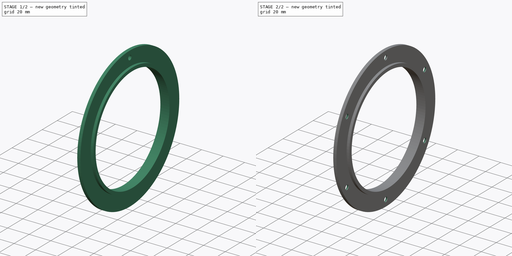
[diagram: build sequence overview — one tinted view per stage of 2, left to right]
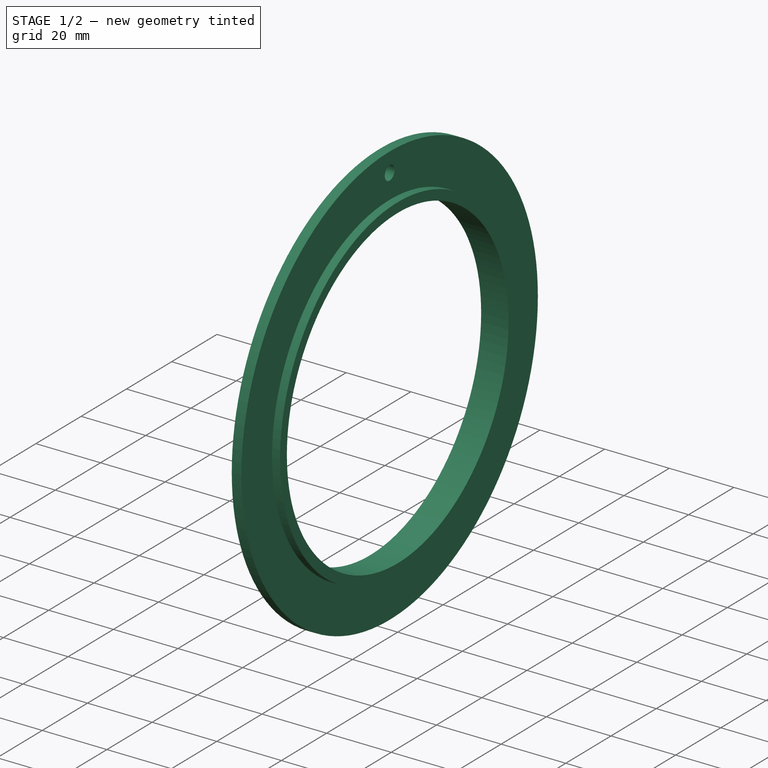
[diagram: stage 1 of 2 — iso view after this stage's code; geometry added in this stage tinted green]
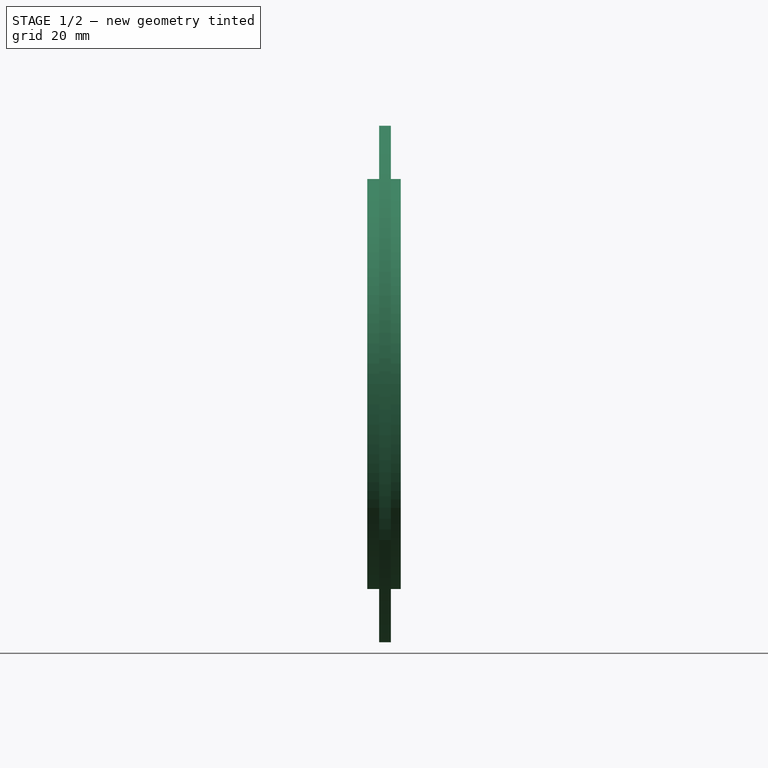
[diagram: stage 1 of 2 — front view after this stage's code; geometry added in this stage tinted green]
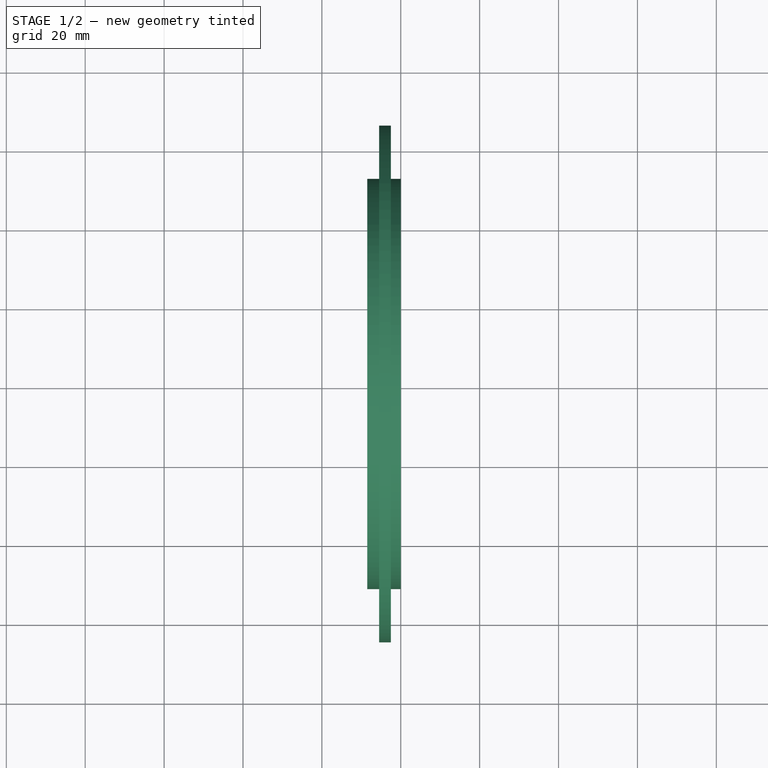
[diagram: stage 1 of 2 — top view after this stage's code; geometry added in this stage tinted green]
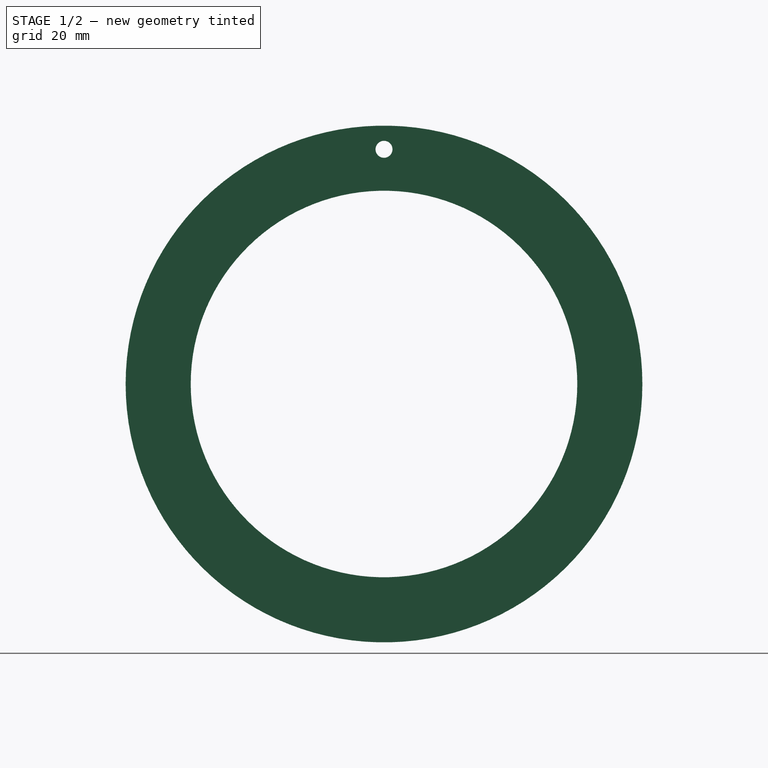
[diagram: stage 1 of 2 — right view after this stage's code; geometry added in this stage tinted green]
FCSTD DOCUMENT  (FreeCAD 0.16R)
Label: Durstflange
License: All rights reserved
LicenseURL: http://en.wikipedia.org/wiki/All_rights_reserved
objects: Sketcher::SketchObject×2, PartDesign::Revolution×1, PartDesign::Pocket×1, PartDesign::PolarPattern×1, PartDesign::Chamfer×1
note: 8 computed .brp shape members not serialized (recipe doc carries the construction recipe); baked Part::Feature solids carry a one-line shape summary decoded from their .brp

FEATURE [Sketcher::SketchObject] Sketch
  sketch-geometry (8):
    g0: LineSegment StartX=-8.5 StartY=52 StartZ=0 EndX=-5.5 EndY=52 EndZ=0
    g1: LineSegment StartX=-5.5 StartY=52 StartZ=0 EndX=-5.5 EndY=65.5 EndZ=0
    g2: LineSegment StartX=-5.5 StartY=65.5 StartZ=0 EndX=-2.5 EndY=65.5 EndZ=0
    g3: LineSegment StartX=-2.5 StartY=65.5 StartZ=0 EndX=-2.5 EndY=52 EndZ=0
    g4: LineSegment StartX=-2.5 StartY=52 StartZ=0 EndX=0 EndY=52 EndZ=0
    g5: LineSegment StartX=0 StartY=52 StartZ=0 EndX=0 EndY=49 EndZ=0
    g6: LineSegment StartX=0 StartY=49 StartZ=0 EndX=-8.5 EndY=49 EndZ=0
    g7: LineSegment StartX=-8.5 StartY=49 StartZ=0 EndX=-8.5 EndY=52 EndZ=0
  constraints (24):
    c: Horizontal(g0)
    c: Coincident(g0,g1)
    c: Vertical(g1)
    c: Coincident(g1,g2)
    c: Coincident(g2,g3)
    c: Coincident(g3,g4)
    c: Coincident(g4,g5)
    c: Coincident(g5,g6)
    c: Coincident(g6,g7)
    c: Coincident(g7,g0)
    c: Vertical(g7)
    c: Vertical(g5)
    c: Horizontal(g4)
    c: Vertical(g3)
    c: Horizontal(g6)
    c: Equal(g7,g5)
    c: Equal(g3,g1)
    c: Distance(g2) = 3
    c: Distance(g0) = 3
    c: Distance(g4) = 2.5
    c: DistanceY(g5) = 49
    c: DistanceY(g4) = 52
    c: DistanceY(g2) = 65.5
    c: PointOnObject(g5,g-2)
FEATURE [PartDesign::Revolution] Revolution
  Angle = 360
  Axis = (1,0,0)
  Base = (0,0,0)
  ReferenceAxis = -> Sketch [H_Axis]
  Sketch = -> Sketch
FEATURE [Sketcher::SketchObject] Sketch001
  Placement = pos=(-5.5,0,0) rot=(0.57735,-0.57735,-0.57735;2.0944rad)
  Support = -> Revolution [Face2]
  sketch-geometry (1):
    g0: Circle CenterX=0 CenterY=59.5 CenterZ=0 NormalX=0 NormalY=0 NormalZ=1 Radius=2.15
  constraints (3):
    c: Radius(g0) = 2.15
    c: PointOnObject(g0,g-2)
    c: DistanceY(g0) = 59.5
FEATURE [PartDesign::Pocket] Pocket
  Length = 5
  Sketch = -> Sketch001
  Type = 0
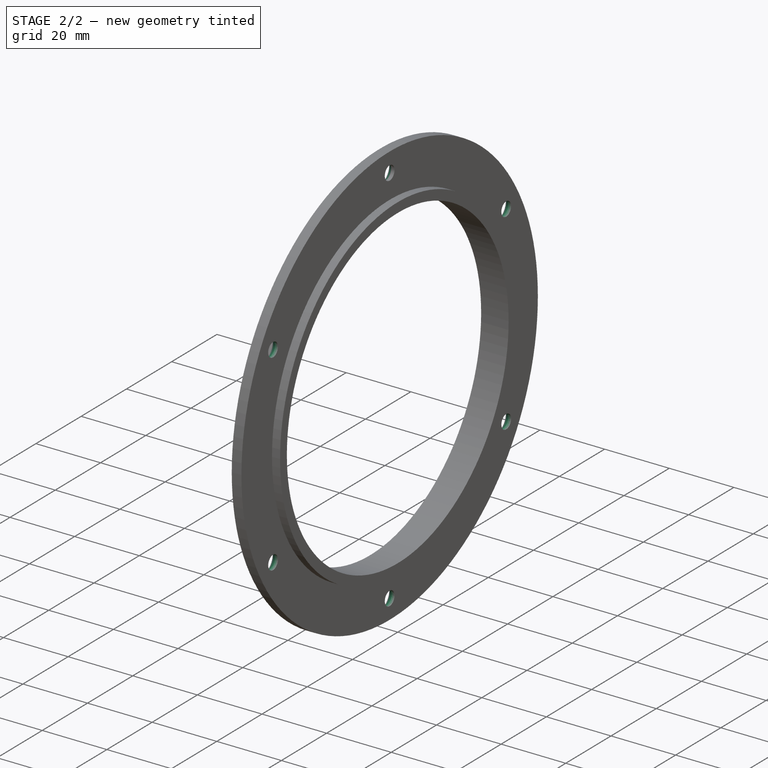
[diagram: stage 2 of 2 — iso view after this stage's code; geometry added in this stage tinted green]
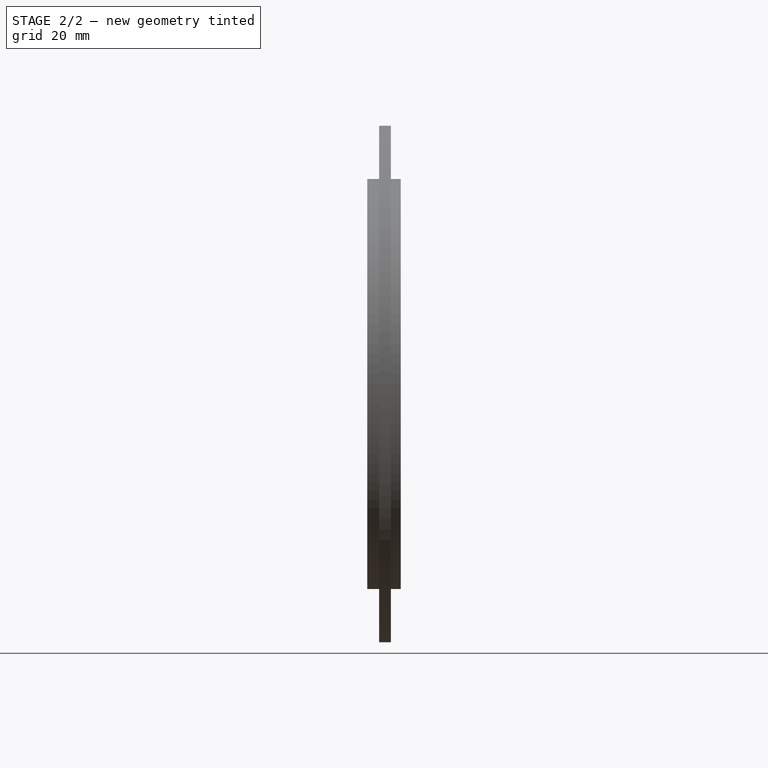
[diagram: stage 2 of 2 — front view after this stage's code; geometry added in this stage tinted green]
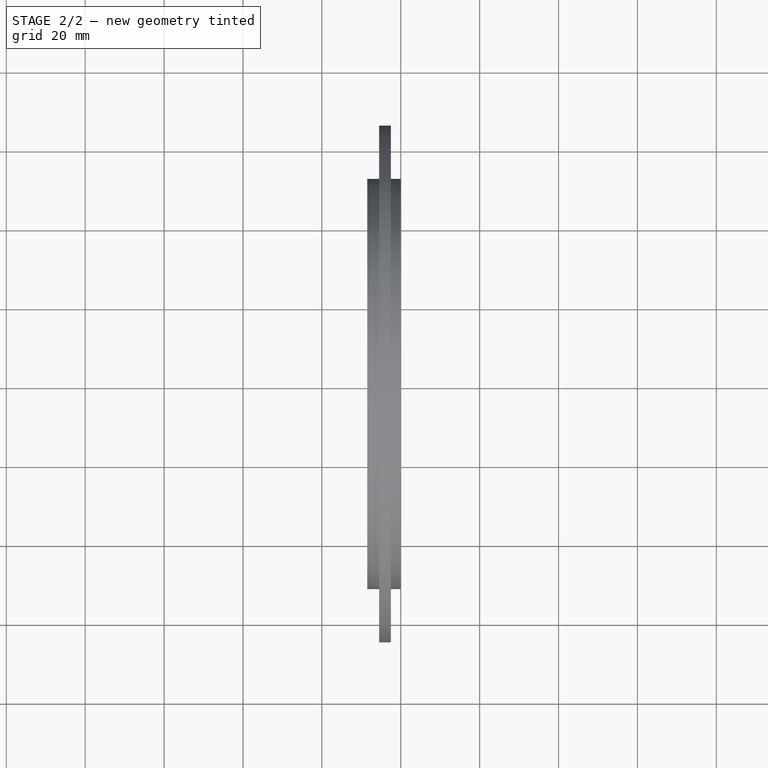
[diagram: stage 2 of 2 — top view after this stage's code; geometry added in this stage tinted green]
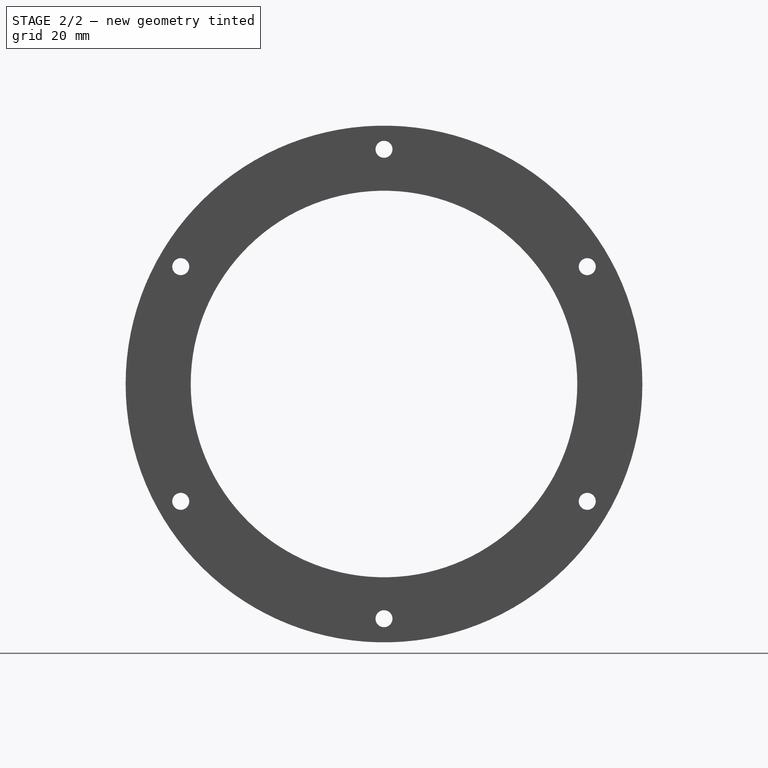
[diagram: stage 2 of 2 — right view after this stage's code; geometry added in this stage tinted green]
FEATURE [PartDesign::PolarPattern] PolarPattern
  Angle = 360
  Axis = -> Sketch001 [N_Axis]
  Occurrences = 6
  Originals = -> [Pocket]
FEATURE [PartDesign::Chamfer] Chamfer
  Base = -> PolarPattern [Edge11,Edge9,Edge8,Edge10,Edge6,Edge7]
  Size = 2
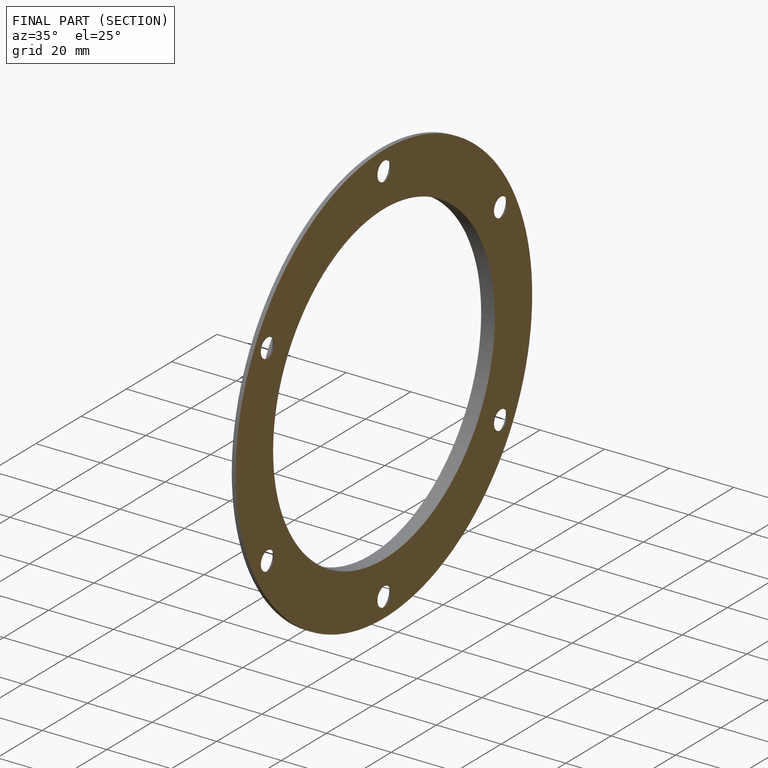
[diagram: finished part — half-section view (interior)]
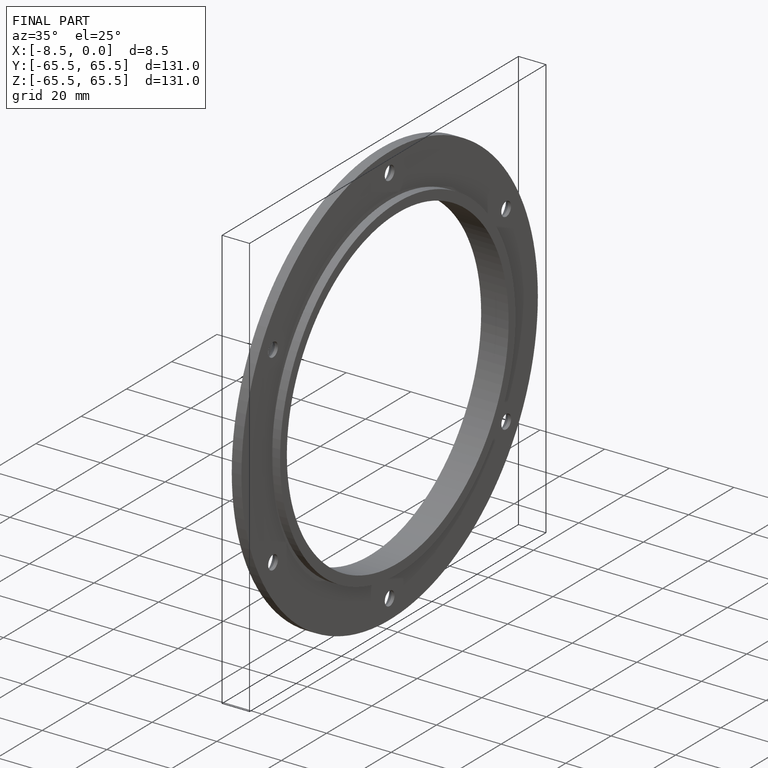
[diagram: finished part — iso view with bounding-box wireframe]
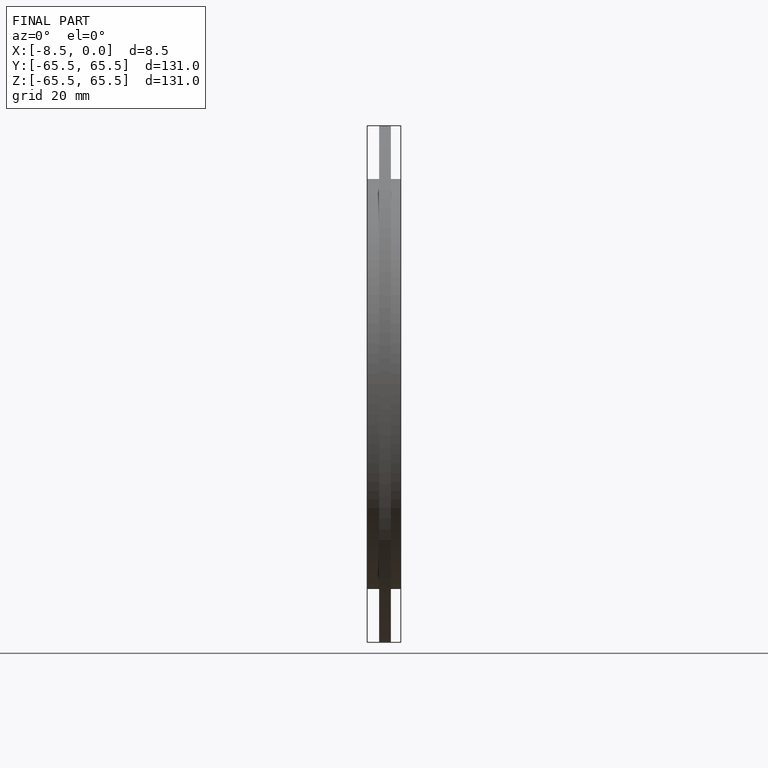
[diagram: finished part — front view with bounding-box wireframe]
